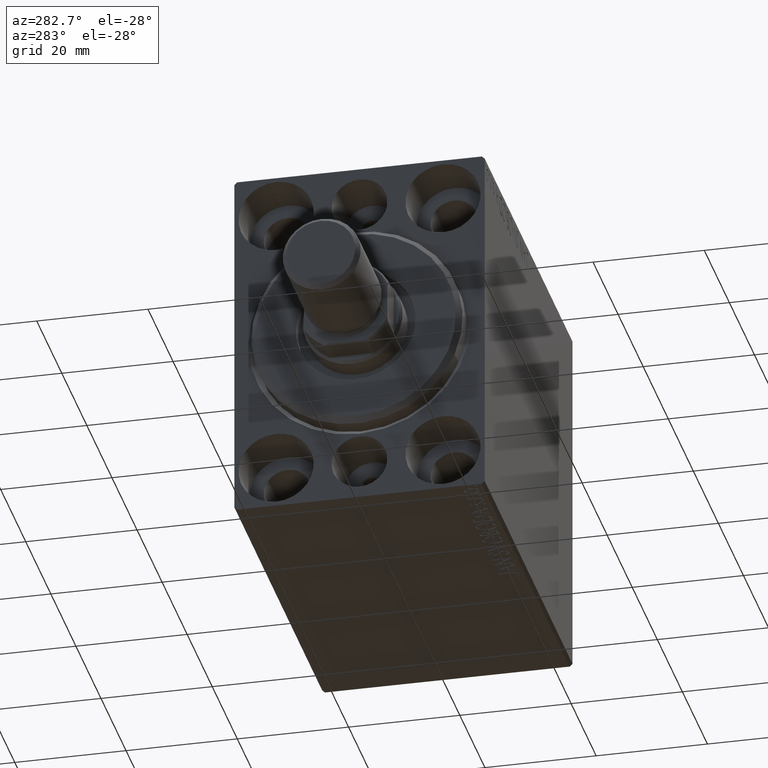
[diagram: clean part render]
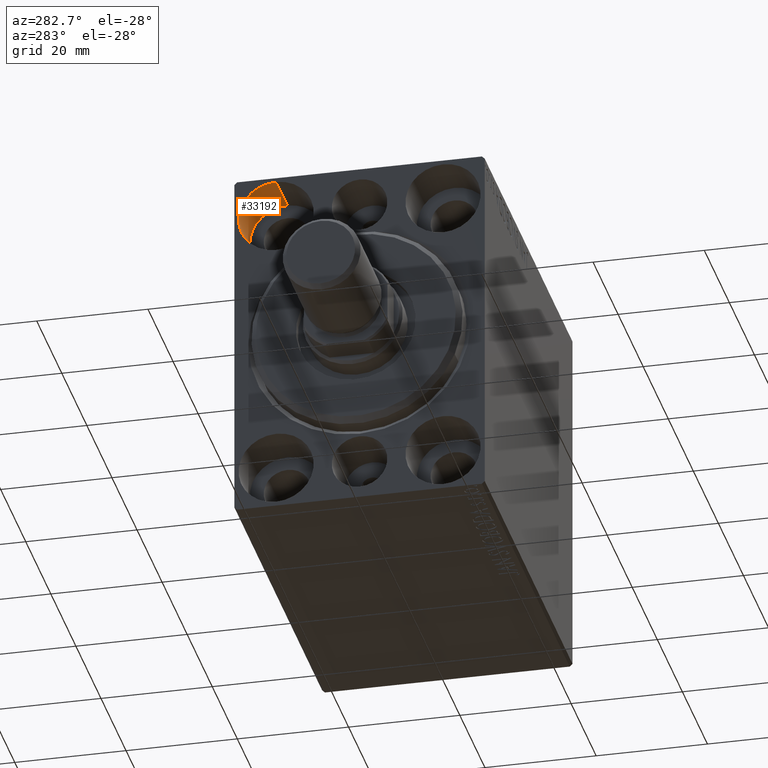
[diagram: same view with one face highlighted and labeled with its STEP entity id]
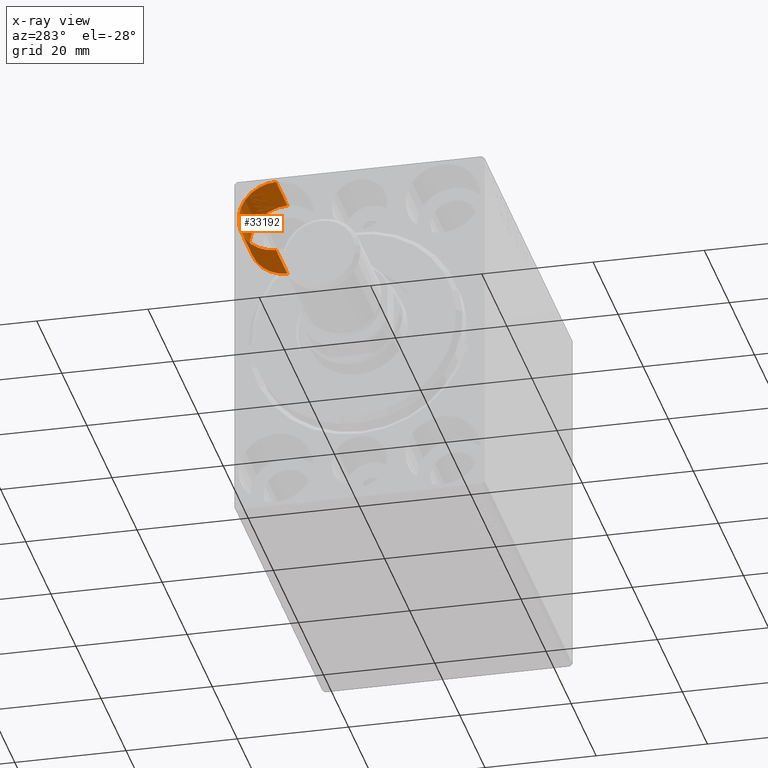
[diagram: x-ray of the same camera — body ghosted, the highlighted face saturated]
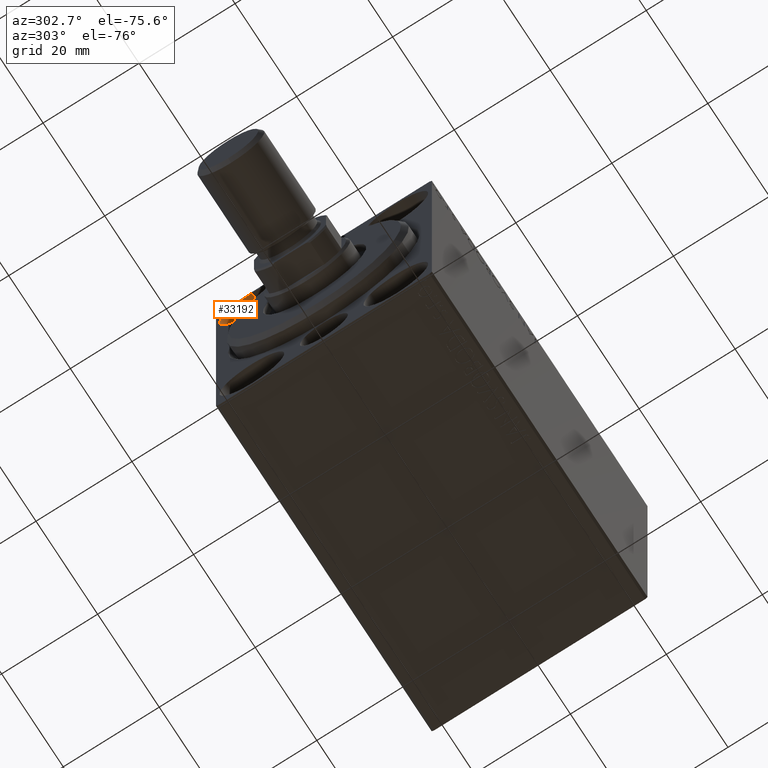
[diagram: same view with one face highlighted and labeled with its STEP entity id]
A machine part, auxiliary view. The second image highlights one B-rep face of the part: STEP entity #33192.
The next image is the same camera in x-ray: the body ghosted, the highlighted face saturated — about 0% of this face is hidden behind the body in this view.
A second angle (auxiliary view) of the same face is appended — the face is thin or edge-on in the first view.
In plain terms, the highlighted cylindrical surface (partial cylindrical patch) has radius 6.75 mm, axis along (-1, -0, -0).
Its self-contained STEP definition (entity closure, byte-faithful):
#536 = AXIS2_PLACEMENT_3D ( 'NONE', #43362, #33305, #23268 ) ;
#845 = ORIENTED_EDGE ( 'NONE', *, *, #23299, .F. ) ;
#1034 = CIRCLE ( 'NONE', #12388, 6.749999999999999112 ) ;
#1784 = ORIENTED_EDGE ( 'NONE', *, *, #23652, .F. ) ;
#6422 = VERTEX_POINT ( 'NONE', #20181 ) ;
#6521 = CIRCLE ( 'NONE', #42213, 6.749999999999999112 ) ;
#7271 = CARTESIAN_POINT ( 'NONE',  ( 0.000000000000000000, 15.00000000000000355, 31.75000000000000000 ) ) ;
#8035 = VECTOR ( 'NONE', #22939, 1000.000000000000000 ) ;
#9210 = DIRECTION ( 'NONE',  ( 0.000000000000000000, 0.000000000000000000, 1.000000000000000000 ) ) ;
#9958 = LINE ( 'NONE', #16239, #8035 ) ;
#10233 = EDGE_LOOP ( 'NONE', ( #1784, #845, #32657, #10871 ) ) ;
#10871 = ORIENTED_EDGE ( 'NONE', *, *, #42733, .T. ) ;
#12388 = AXIS2_PLACEMENT_3D ( 'NONE', #17090, #13728, #41213 ) ;
#13728 = DIRECTION ( 'NONE',  ( -1.000000000000000000, 0.000000000000000000, 0.000000000000000000 ) ) ;
#15174 = EDGE_CURVE ( 'NONE', #6422, #34198, #9958, .T. ) ;
#15294 = VECTOR ( 'NONE', #34614, 1000.000000000000000 ) ;
#15632 = CARTESIAN_POINT ( 'NONE',  ( 9.000000000000000000, 15.00000000000000355, 18.25000000000000355 ) ) ;
#16239 = CARTESIAN_POINT ( 'NONE',  ( 9.000000000000000000, 15.00000000000000355, 31.75000000000000000 ) ) ;
#16353 = CYLINDRICAL_SURFACE ( 'NONE', #536, 6.749999999999999112 ) ;
#16581 = FACE_OUTER_BOUND ( 'NONE', #10233, .T. ) ;
#17090 = CARTESIAN_POINT ( 'NONE',  ( 9.000000000000000000, 15.00000000000000355, 25.00000000000000000 ) ) ;
#19057 = CARTESIAN_POINT ( 'NONE',  ( 0.000000000000000000, 15.00000000000000355, 25.00000000000000000 ) ) ;
#20181 = CARTESIAN_POINT ( 'NONE',  ( 9.000000000000000000, 15.00000000000000355, 31.75000000000000000 ) ) ;
#21003 = LINE ( 'NONE', #21228, #15294 ) ;
#21228 = CARTESIAN_POINT ( 'NONE',  ( 9.000000000000000000, 15.00000000000000355, 18.25000000000000355 ) ) ;
#22939 = DIRECTION ( 'NONE',  ( -1.000000000000000000, -0.000000000000000000, -0.000000000000000000 ) ) ;
#23268 = DIRECTION ( 'NONE',  ( 0.000000000000000000, 0.000000000000000000, 1.000000000000000000 ) ) ;
#23299 = EDGE_CURVE ( 'NONE', #6422, #32758, #1034, .T. ) ;
#23652 = EDGE_CURVE ( 'NONE', #32758, #39484, #21003, .T. ) ;
#32657 = ORIENTED_EDGE ( 'NONE', *, *, #15174, .T. ) ;
#32758 = VERTEX_POINT ( 'NONE', #15632 ) ;
#33192 = ADVANCED_FACE ( 'NONE', ( #16581 ), #16353, .F. ) ;
#33305 = DIRECTION ( 'NONE',  ( -1.000000000000000000, -0.000000000000000000, -0.000000000000000000 ) ) ;
#34198 = VERTEX_POINT ( 'NONE', #7271 ) ;
#34614 = DIRECTION ( 'NONE',  ( -1.000000000000000000, -0.000000000000000000, -0.000000000000000000 ) ) ;
#39484 = VERTEX_POINT ( 'NONE', #42430 ) ;
#41213 = DIRECTION ( 'NONE',  ( 0.000000000000000000, 0.000000000000000000, 1.000000000000000000 ) ) ;
#42213 = AXIS2_PLACEMENT_3D ( 'NONE', #19057, #43162, #9210 ) ;
#42430 = CARTESIAN_POINT ( 'NONE',  ( 0.000000000000000000, 15.00000000000000355, 18.25000000000000355 ) ) ;
#42733 = EDGE_CURVE ( 'NONE', #34198, #39484, #6521, .T. ) ;
#43162 = DIRECTION ( 'NONE',  ( -1.000000000000000000, 0.000000000000000000, 0.000000000000000000 ) ) ;
#43362 = CARTESIAN_POINT ( 'NONE',  ( 9.000000000000000000, 15.00000000000000355, 25.00000000000000000 ) ) ;